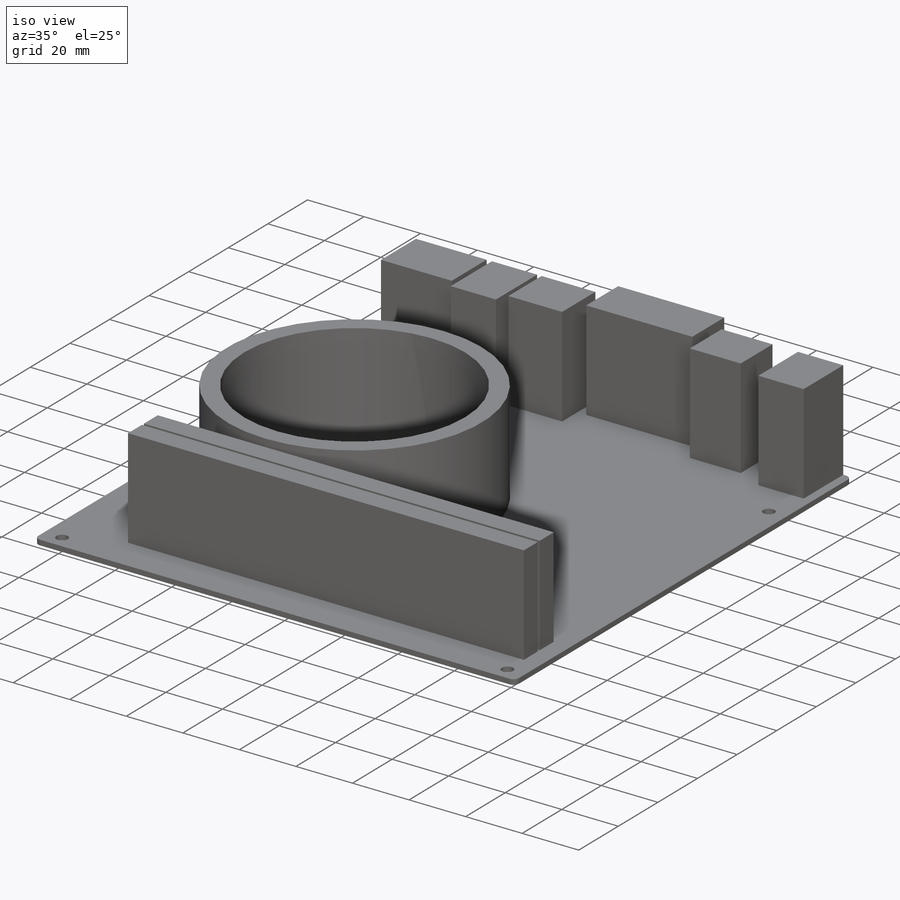
[diagram: iso view]
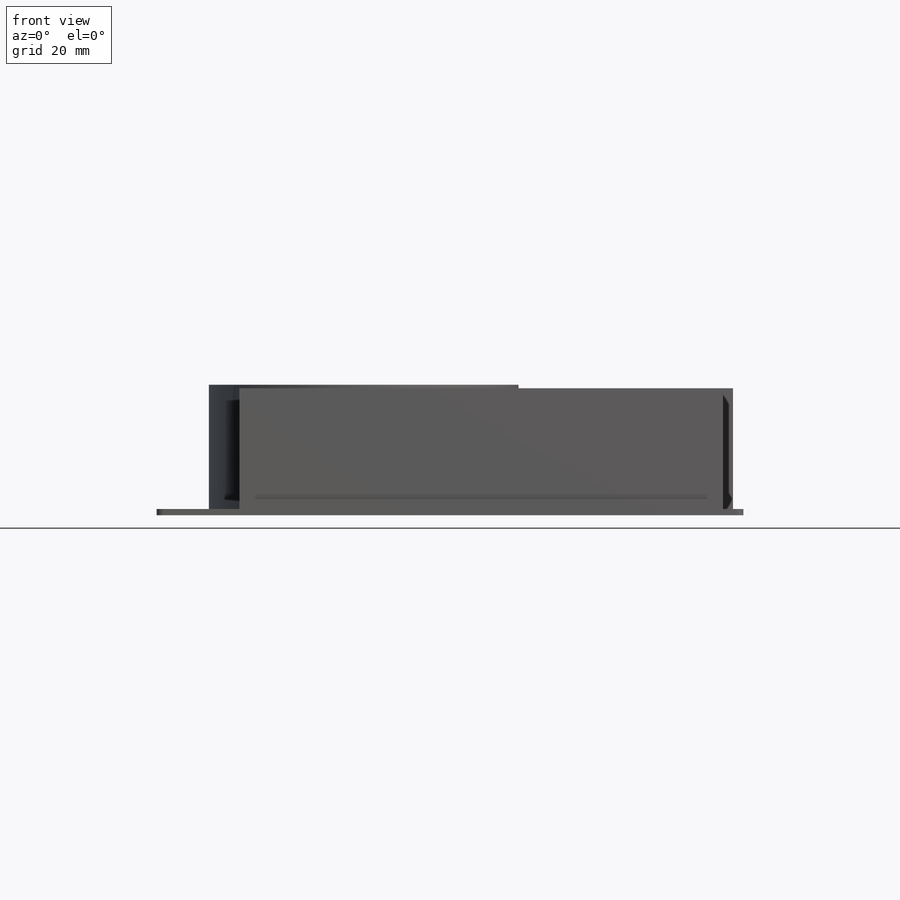
[diagram: front view]
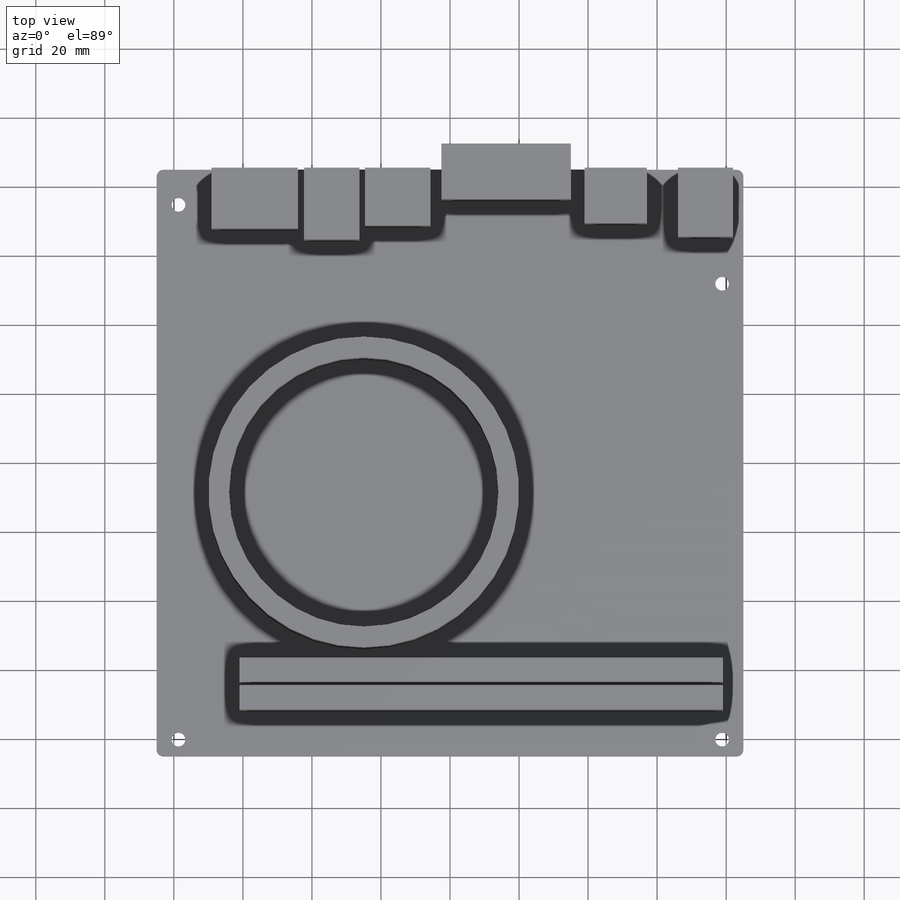
[diagram: top view]
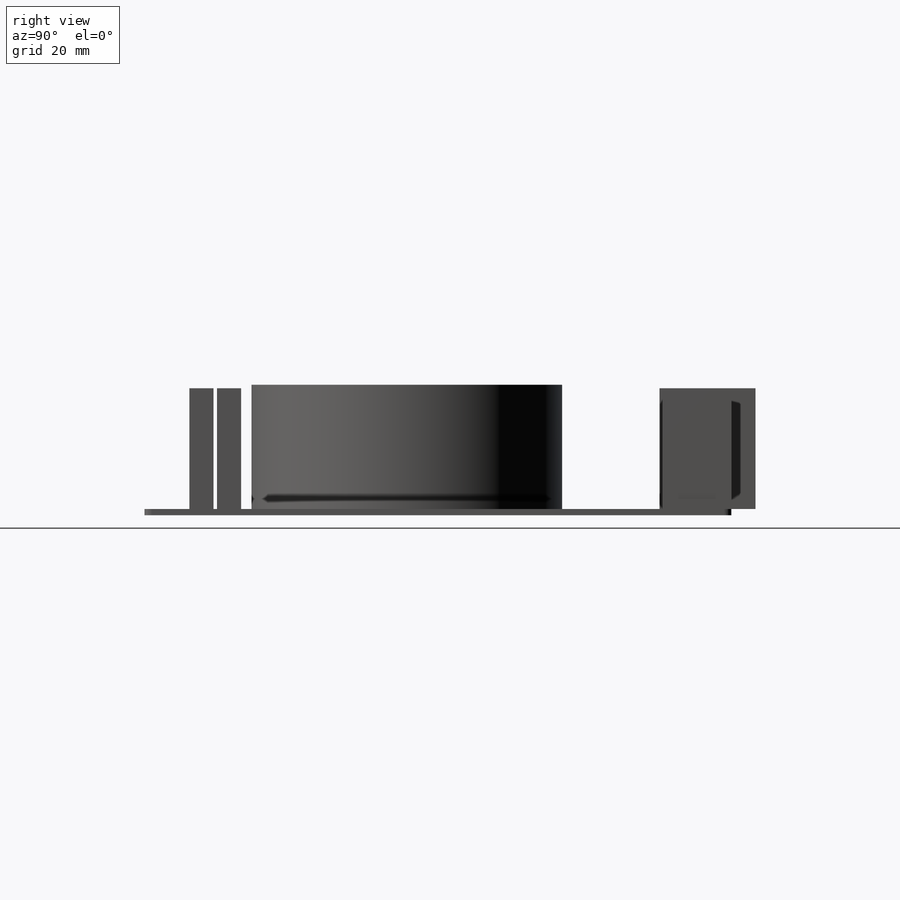
[diagram: right view]
SOLIDWORKS PART (.sldprt)
format: sldprt  version: not decoded by parser v0  size: 356,864 bytes
history: native  units: mm
features: sketch x5, extrude x4, material x1, fillet x1, cut_extrude x1, pattern_linear x1 (+11 scaffold rows collapsed)
feature tree (24):
  scaffold x11  (default folders/planes/origin — collapsed)
  material  "Silicon"
  sketch  "Sketch1"  dims[D1=170.0mm]
  extrude  "Boss-Extrude1"  Depth=1.8mm
  fillet  "Fillet1"  Radius=2mm
  sketch  "Sketch2"  dims[c1.D6=3.96mm c1.D1=2.5mm c1.D2=154.94mm c1.D3=6.35mm c2.D1=157.48mm c2.D4=10.16mm c2.D5=22.86mm c2.D7=6.17mm]
  cut_extrude  "Cut-Extrude1"  Depth=2mm
  sketch  "Sketch3"  dims[D1=7.0mm D2=50.0mm D3=37.5mm D4=16.0mm D5=3.0mm D6=28.0mm D7=18.0mm D8=19.0mm D9=16.0mm D10=25.0mm D11=20.0mm D12=18.0mm]
  extrude  "Boss-Extrude2"  Depth=35mm
  sketch  "Sketch4"  dims[D1=6.0mm D2=13.0mm D3=7.0mm D4=140.0mm]
  extrude  "Boss-Extrude3"  Depth=35mm
  pattern_linear  "LPattern1"  Count1=2 Count2=1 Spacing1=8mm Spacing2=10mm
  sketch  "Sketch5"  dims[D3=90.0mm D4=78.0mm D1=60.0mm D2=76.0mm]
  extrude  "Boss-Extrude4"  Depth=36mm
decode coverage: 12 of 12 modeling features carry decoded parameters
note: suppression state not decoded; provenance and decode notes live in map.json
